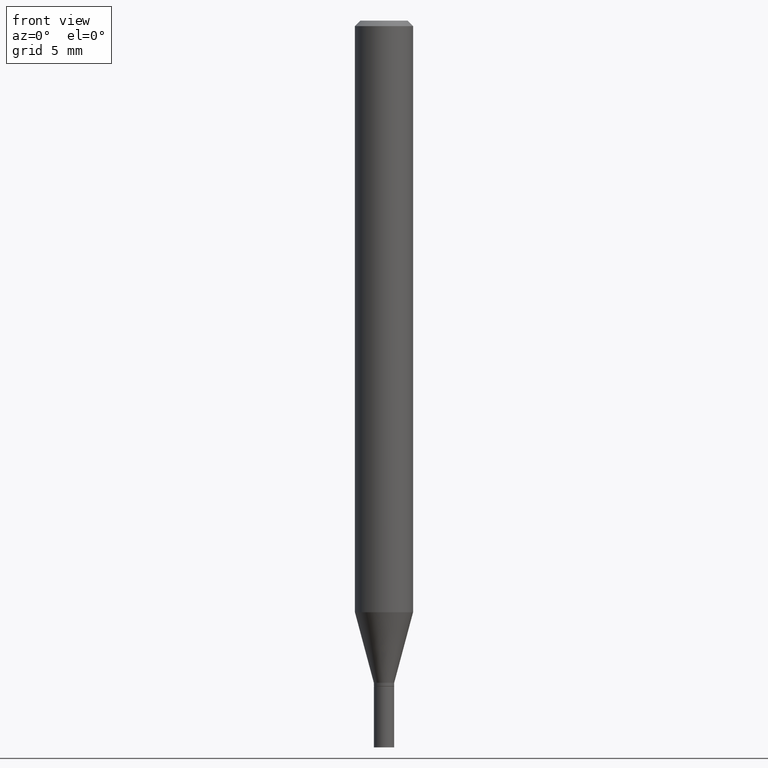
[diagram: clean part render]
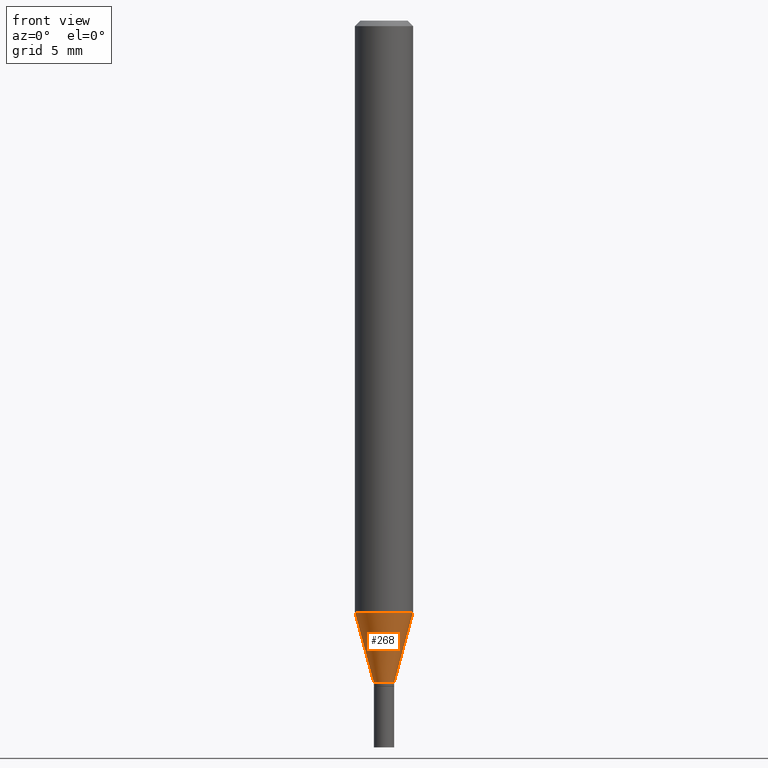
[diagram: same view with one face highlighted and labeled with its STEP entity id]
A machine part, front view. The second image highlights one B-rep face of the part: STEP entity #268.
In plain terms, the highlighted conical surface has half-angle 15 deg.
Its self-contained STEP definition (entity closure, byte-faithful):
#9 = DIRECTION ( 'NONE',  ( 0.2588190451025213501, 1.565188264969621968E-15, 0.9659258262890682012 ) ) ;
#23 = CARTESIAN_POINT ( 'NONE',  ( -0.07875000000000000056, -5.035263626391749269E-15, -1.602418998652472615 ) ) ;
#33 = ORIENTED_EDGE ( 'NONE', *, *, #139, .T. ) ;
#42 = CARTESIAN_POINT ( 'NONE',  ( 0.02754999999999965463, -6.454352402985435430E-15, -1.793499999999999872 ) ) ;
#43 = VERTEX_POINT ( 'NONE', #236 ) ;
#63 = CARTESIAN_POINT ( 'NONE',  ( 4.385948303893042033E-29, -6.261971781215181003E-15, -1.793499999999999872 ) ) ;
#65 = CARTESIAN_POINT ( 'NONE',  ( 0.07875000000000000056, -6.144724341670621417E-15, -1.602418998652472615 ) ) ;
#74 = EDGE_CURVE ( 'NONE', #438, #328, #302, .T. ) ;
#77 = EDGE_LOOP ( 'NONE', ( #367, #228, #33, #231 ) ) ;
#79 = CARTESIAN_POINT ( 'NONE',  ( 4.385948303893042033E-29, -6.261971781215181003E-15, -1.793499999999999872 ) ) ;
#93 = CIRCLE ( 'NONE', #349, 0.02754999999999965463 ) ;
#111 = DIRECTION ( 'NONE',  ( 1.000000000000000000, -6.982962677686274599E-15, 0.000000000000000000 ) ) ;
#123 = VERTEX_POINT ( 'NONE', #133 ) ;
#133 = CARTESIAN_POINT ( 'NONE',  ( 0.02754999999999965463, -6.454352402985435430E-15, -1.793499999999999872 ) ) ;
#139 = EDGE_CURVE ( 'NONE', #123, #328, #193, .T. ) ;
#143 = DIRECTION ( 'NONE',  ( 1.000000000000000000, -6.982962677686274599E-15, 0.000000000000000000 ) ) ;
#176 = CARTESIAN_POINT ( 'NONE',  ( 3.918665675643044057E-29, -5.594816030802827282E-15, -1.602418998652472615 ) ) ;
#193 = LINE ( 'NONE', #42, #220 ) ;
#220 = VECTOR ( 'NONE', #9, 39.37007874015747433 ) ;
#228 = ORIENTED_EDGE ( 'NONE', *, *, #283, .T. ) ;
#231 = ORIENTED_EDGE ( 'NONE', *, *, #74, .F. ) ;
#236 = CARTESIAN_POINT ( 'NONE',  ( -0.02754999999999965463, -5.550740441952512649E-15, -1.793499999999999872 ) ) ;
#254 = CARTESIAN_POINT ( 'NONE',  ( -0.02754999999999965463, -6.066217257513276029E-15, -1.793499999999999872 ) ) ;
#255 = AXIS2_PLACEMENT_3D ( 'NONE', #79, #354, #143 ) ;
#268 = ADVANCED_FACE ( 'NONE', ( #322 ), #404, .T. ) ;
#283 = EDGE_CURVE ( 'NONE', #43, #123, #93, .T. ) ;
#302 = CIRCLE ( 'NONE', #435, 0.07875000000000000056 ) ;
#311 = LINE ( 'NONE', #254, #459 ) ;
#322 = FACE_OUTER_BOUND ( 'NONE', #77, .T. ) ;
#328 = VERTEX_POINT ( 'NONE', #65 ) ;
#349 = AXIS2_PLACEMENT_3D ( 'NONE', #63, #399, #111 ) ;
#354 = DIRECTION ( 'NONE',  ( -2.445468806185136597E-29, 3.491481338843145583E-15, 1.000000000000000000 ) ) ;
#367 = ORIENTED_EDGE ( 'NONE', *, *, #405, .F. ) ;
#382 = DIRECTION ( 'NONE',  ( 1.000000000000000000, -6.982962677686261977E-15, 0.000000000000000000 ) ) ;
#398 = DIRECTION ( 'NONE',  ( -2.445468806185136597E-29, 3.491481338843145583E-15, 1.000000000000000000 ) ) ;
#399 = DIRECTION ( 'NONE',  ( -2.445468806185136597E-29, 3.491481338843145583E-15, 1.000000000000000000 ) ) ;
#403 = DIRECTION ( 'NONE',  ( -0.2588190451025213501, 5.211531920934551042E-15, 0.9659258262890682012 ) ) ;
#404 = CONICAL_SURFACE ( 'NONE', #255, 0.02754999999999965463, 0.2617993877991500740 ) ;
#405 = EDGE_CURVE ( 'NONE', #43, #438, #311, .T. ) ;
#435 = AXIS2_PLACEMENT_3D ( 'NONE', #176, #398, #382 ) ;
#438 = VERTEX_POINT ( 'NONE', #23 ) ;
#459 = VECTOR ( 'NONE', #403, 39.37007874015747433 ) ;